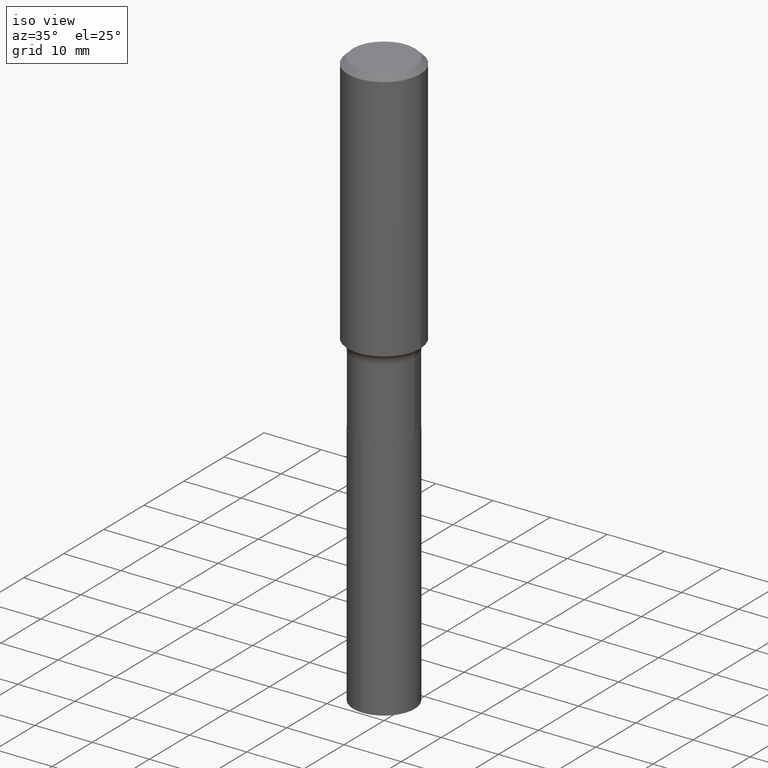
[diagram: clean part render]
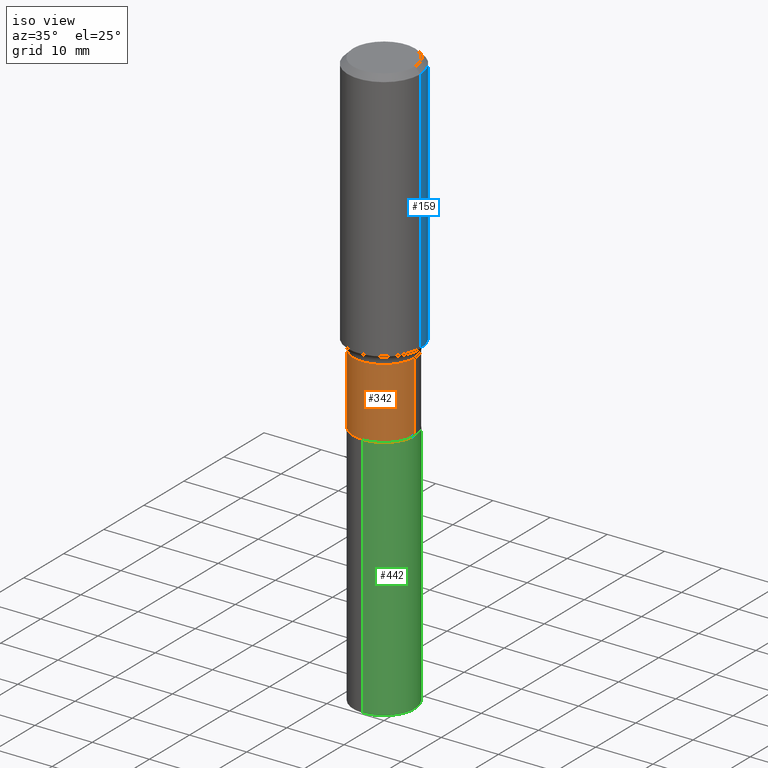
[diagram: same view with three faces highlighted in distinct colors, each labeled with its STEP entity id]
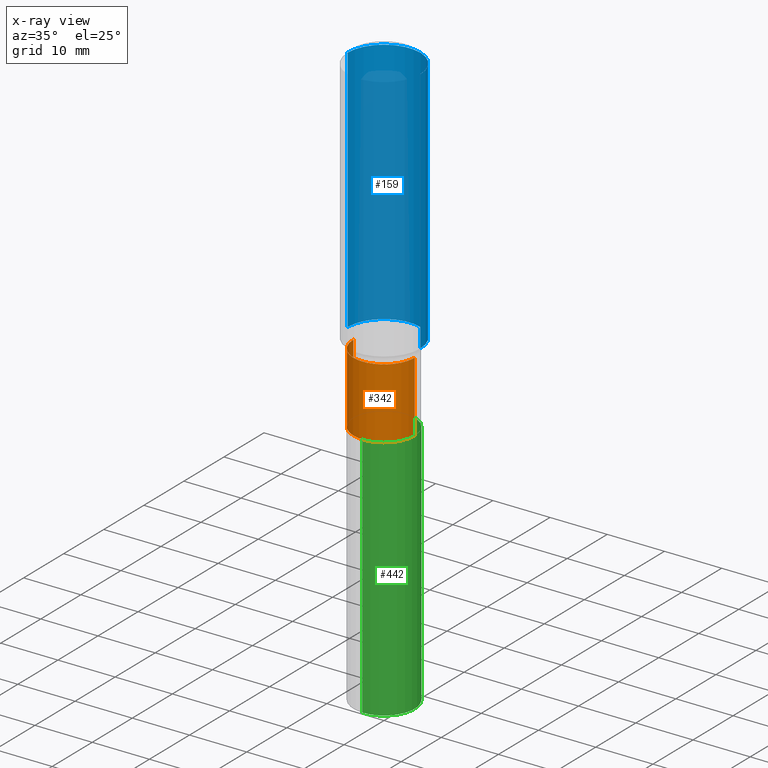
[diagram: x-ray of the same camera — body ghosted, the three highlighted faces saturated]
A machine part, iso view with three faces highlighted in distinct colors.
The next image is the same camera in x-ray (body ghosted, the three faces saturated) — at least one of them is partly hidden behind the body in this view.
Their STEP definitions:

[orange] entity #342 — the highlighted cylindrical surface (partial cylindrical patch) has radius 5.3581 mm, axis along (-0, 0, 1).
#13 = CARTESIAN_POINT ( 'NONE',  ( -0.2109499999999999431, -5.672787342964832849E-15, -1.811700000000000310 ) ) ;
#31 = CIRCLE ( 'NONE', #299, 0.2109499999999999431 ) ;
#49 = CARTESIAN_POINT ( 'NONE',  ( 4.430455836165612608E-29, -6.325516741582127678E-15, -1.811700000000000310 ) ) ;
#52 = AXIS2_PLACEMENT_3D ( 'NONE', #486, #210, #142 ) ;
#64 = DIRECTION ( 'NONE',  ( 1.000000000000000000, -6.982962677686266711E-15, 0.000000000000000000 ) ) ;
#66 = CARTESIAN_POINT ( 'NONE',  ( 0.2109499999999999431, -7.798572718440045243E-15, -1.811700000000000310 ) ) ;
#76 = VERTEX_POINT ( 'NONE', #13 ) ;
#77 = VERTEX_POINT ( 'NONE', #163 ) ;
#99 = CARTESIAN_POINT ( 'NONE',  ( 5.615774566523547796E-29, -8.017837746519400290E-15, -2.296400000000000219 ) ) ;
#107 = ORIENTED_EDGE ( 'NONE', *, *, #126, .F. ) ;
#126 = EDGE_CURVE ( 'NONE', #77, #76, #267, .T. ) ;
#131 = AXIS2_PLACEMENT_3D ( 'NONE', #99, #395, #64 ) ;
#142 = DIRECTION ( 'NONE',  ( 1.000000000000000000, -6.982962677686266711E-15, 4.876176775795935793E-29 ) ) ;
#152 = ORIENTED_EDGE ( 'NONE', *, *, #421, .T. ) ;
#163 = CARTESIAN_POINT ( 'NONE',  ( -0.2109499999999999986, -5.672787342964832060E-15, -2.296400000000000219 ) ) ;
#181 = DIRECTION ( 'NONE',  ( -2.445468806185136877E-29, 3.491481338843145188E-15, 1.000000000000000000 ) ) ;
#201 = DIRECTION ( 'NONE',  ( -2.445468806185136877E-29, 3.491481338843145188E-15, 1.000000000000000000 ) ) ;
#210 = DIRECTION ( 'NONE',  ( -2.445468806185136597E-29, 3.491481338843145583E-15, 1.000000000000000000 ) ) ;
#217 = CYLINDRICAL_SURFACE ( 'NONE', #52, 0.2109499999999999709 ) ;
#226 = EDGE_CURVE ( 'NONE', #76, #446, #31, .T. ) ;
#244 = VECTOR ( 'NONE', #201, 39.37007874015748143 ) ;
#259 = VERTEX_POINT ( 'NONE', #284 ) ;
#267 = LINE ( 'NONE', #346, #244 ) ;
#273 = DIRECTION ( 'NONE',  ( 1.000000000000000000, -6.982962677686268288E-15, 0.000000000000000000 ) ) ;
#278 = CIRCLE ( 'NONE', #131, 0.2109499999999999986 ) ;
#284 = CARTESIAN_POINT ( 'NONE',  ( 0.2109499999999999986, -9.490893723377317855E-15, -2.296400000000000219 ) ) ;
#291 = LINE ( 'NONE', #479, #322 ) ;
#299 = AXIS2_PLACEMENT_3D ( 'NONE', #49, #426, #273 ) ;
#306 = EDGE_LOOP ( 'NONE', ( #107, #152, #321, #335 ) ) ;
#321 = ORIENTED_EDGE ( 'NONE', *, *, #403, .T. ) ;
#322 = VECTOR ( 'NONE', #181, 39.37007874015748143 ) ;
#335 = ORIENTED_EDGE ( 'NONE', *, *, #226, .F. ) ;
#342 = ADVANCED_FACE ( 'NONE', ( #483 ), #217, .T. ) ;
#346 = CARTESIAN_POINT ( 'NONE',  ( -0.2109499999999999709, 1.498889901085931135E-15, -1.037649357289272242E-29 ) ) ;
#395 = DIRECTION ( 'NONE',  ( -2.445468806185136597E-29, 3.491481338843145583E-15, 1.000000000000000000 ) ) ;
#403 = EDGE_CURVE ( 'NONE', #259, #446, #291, .T. ) ;
#421 = EDGE_CURVE ( 'NONE', #77, #259, #278, .T. ) ;
#426 = DIRECTION ( 'NONE',  ( -2.445468806185136597E-29, 3.491481338843145583E-15, 1.000000000000000000 ) ) ;
#446 = VERTEX_POINT ( 'NONE', #66 ) ;
#479 = CARTESIAN_POINT ( 'NONE',  ( 0.2109499999999999709, -1.473055976857917762E-15, 1.028629490854152488E-29 ) ) ;
#483 = FACE_OUTER_BOUND ( 'NONE', #306, .T. ) ;
#486 = CARTESIAN_POINT ( 'NONE',  ( 0.000000000000000000, 0.000000000000000000, 0.000000000000000000 ) ) ;

[blue] entity #159 — the highlighted cylindrical surface (partial cylindrical patch) has radius 6.35 mm, axis along (-0, 0, 1).
#2 = EDGE_CURVE ( 'NONE', #189, #69, #329, .T. ) ;
#32 = CIRCLE ( 'NONE', #381, 0.2500000000000002220 ) ;
#46 = CYLINDRICAL_SURFACE ( 'NONE', #177, 0.2500000000000001110 ) ;
#55 = CARTESIAN_POINT ( 'NONE',  ( 0.2500000000000002776, -7.835307206898355529E-15, -1.744121175653907674 ) ) ;
#69 = VERTEX_POINT ( 'NONE', #471 ) ;
#72 = ORIENTED_EDGE ( 'NONE', *, *, #112, .T. ) ;
#95 = DIRECTION ( 'NONE',  ( -2.445468806185136597E-29, 3.491481338843145583E-15, 1.000000000000000000 ) ) ;
#112 = EDGE_CURVE ( 'NONE', #265, #219, #166, .T. ) ;
#156 = CARTESIAN_POINT ( 'NONE',  ( -0.2500000000000000000, -1.333891704441451331E-15, -0.03750000000000025535 ) ) ;
#157 = ORIENTED_EDGE ( 'NONE', *, *, #447, .T. ) ;
#159 = ADVANCED_FACE ( 'NONE', ( #423 ), #46, .T. ) ;
#166 = LINE ( 'NONE', #338, #465 ) ;
#177 = AXIS2_PLACEMENT_3D ( 'NONE', #385, #312, #281 ) ;
#185 = VECTOR ( 'NONE', #190, 39.37007874015748143 ) ;
#189 = VERTEX_POINT ( 'NONE', #55 ) ;
#190 = DIRECTION ( 'NONE',  ( -2.445468806185136877E-29, 3.491481338843145188E-15, 1.000000000000000000 ) ) ;
#193 = AXIS2_PLACEMENT_3D ( 'NONE', #242, #95, #394 ) ;
#209 = CARTESIAN_POINT ( 'NONE',  ( -0.2500000000000002776, -4.313209698076534443E-15, -1.744121175653907674 ) ) ;
#219 = VERTEX_POINT ( 'NONE', #156 ) ;
#242 = CARTESIAN_POINT ( 'NONE',  ( 9.170508023194324245E-31, -1.309305502066188567E-16, -0.03750000000000025535 ) ) ;
#251 = EDGE_LOOP ( 'NONE', ( #157, #72, #262, #382 ) ) ;
#262 = ORIENTED_EDGE ( 'NONE', *, *, #311, .F. ) ;
#265 = VERTEX_POINT ( 'NONE', #209 ) ;
#281 = DIRECTION ( 'NONE',  ( 1.000000000000000000, -6.982962677686266711E-15, 4.876176775795935793E-29 ) ) ;
#311 = EDGE_CURVE ( 'NONE', #69, #219, #313, .T. ) ;
#312 = DIRECTION ( 'NONE',  ( -2.445468806185136597E-29, 3.491481338843145583E-15, 1.000000000000000000 ) ) ;
#313 = CIRCLE ( 'NONE', #193, 0.2500000000000000000 ) ;
#329 = LINE ( 'NONE', #491, #185 ) ;
#338 = CARTESIAN_POINT ( 'NONE',  ( -0.2500000000000001110, 1.776356839400251254E-15, -1.229733772563727006E-29 ) ) ;
#356 = DIRECTION ( 'NONE',  ( 1.000000000000000000, -6.982962677686268288E-15, 0.000000000000000000 ) ) ;
#381 = AXIS2_PLACEMENT_3D ( 'NONE', #444, #439, #356 ) ;
#382 = ORIENTED_EDGE ( 'NONE', *, *, #2, .F. ) ;
#383 = DIRECTION ( 'NONE',  ( -2.445468806185136877E-29, 3.491481338843145188E-15, 1.000000000000000000 ) ) ;
#385 = CARTESIAN_POINT ( 'NONE',  ( 0.000000000000000000, 0.000000000000000000, 0.000000000000000000 ) ) ;
#394 = DIRECTION ( 'NONE',  ( 1.000000000000000000, -6.982962677686266711E-15, 0.000000000000000000 ) ) ;
#423 = FACE_OUTER_BOUND ( 'NONE', #251, .T. ) ;
#439 = DIRECTION ( 'NONE',  ( -2.445468806185136597E-29, 3.491481338843145583E-15, 1.000000000000000000 ) ) ;
#444 = CARTESIAN_POINT ( 'NONE',  ( 4.265193929268578422E-29, -6.089566537476786485E-15, -1.744121175653907674 ) ) ;
#447 = EDGE_CURVE ( 'NONE', #189, #265, #32, .T. ) ;
#465 = VECTOR ( 'NONE', #383, 39.37007874015748143 ) ;
#471 = CARTESIAN_POINT ( 'NONE',  ( 0.2500000000000000000, -1.876671219628185362E-15, -0.03750000000000025535 ) ) ;
#491 = CARTESIAN_POINT ( 'NONE',  ( 0.2500000000000001110, -1.745740669421567467E-15, 1.219044193948984509E-29 ) ) ;

[green] entity #442 — the highlighted cylindrical surface (partial cylindrical patch) has radius 5.3581 mm, axis along (-0, 0, 1).
#3 = CIRCLE ( 'NONE', #458, 0.2109499999999999986 ) ;
#14 = EDGE_CURVE ( 'NONE', #29, #36, #197, .T. ) ;
#17 = CARTESIAN_POINT ( 'NONE',  ( 1.498889901086028954E-15, 0.2109499999999919495, -2.296900000000000830 ) ) ;
#29 = VERTEX_POINT ( 'NONE', #459 ) ;
#34 = ORIENTED_EDGE ( 'NONE', *, *, #295, .T. ) ;
#36 = VERTEX_POINT ( 'NONE', #116 ) ;
#75 = CIRCLE ( 'NONE', #457, 0.2109499999999999986 ) ;
#91 = CARTESIAN_POINT ( 'NONE',  ( 1.498889901086028757E-15, 0.2109499999999859821, -3.995987720485979278 ) ) ;
#93 = DIRECTION ( 'NONE',  ( -2.445665733162278682E-29, 3.491199328203490904E-15, 1.000000000000000000 ) ) ;
#115 = ORIENTED_EDGE ( 'NONE', *, *, #14, .F. ) ;
#116 = CARTESIAN_POINT ( 'NONE',  ( -1.473055976857861753E-15, -0.2109500000000080200, -2.296899999999999054 ) ) ;
#167 = CARTESIAN_POINT ( 'NONE',  ( 1.498889901085987144E-15, 0.2109499999999919773, -2.296900000000000830 ) ) ;
#172 = VERTEX_POINT ( 'NONE', #91 ) ;
#197 = LINE ( 'NONE', #339, #380 ) ;
#202 = DIRECTION ( 'NONE',  ( -2.445665733162278401E-29, 3.491199328203490904E-15, 1.000000000000000000 ) ) ;
#208 = FACE_OUTER_BOUND ( 'NONE', #330, .T. ) ;
#215 = EDGE_CURVE ( 'NONE', #36, #223, #75, .T. ) ;
#223 = VERTEX_POINT ( 'NONE', #17 ) ;
#245 = AXIS2_PLACEMENT_3D ( 'NONE', #285, #401, #289 ) ;
#285 = CARTESIAN_POINT ( 'NONE',  ( 5.616997300926640597E-29, -8.019583487188821005E-15, -2.296899999999999942 ) ) ;
#289 = DIRECTION ( 'NONE',  ( -6.982962677686265922E-15, -1.000000000000000000, 3.885064698266314085E-15 ) ) ;
#295 = EDGE_CURVE ( 'NONE', #29, #172, #3, .T. ) ;
#301 = EDGE_CURVE ( 'NONE', #172, #223, #438, .T. ) ;
#307 = DIRECTION ( 'NONE',  ( -6.982962677686265922E-15, -1.000000000000000000, 3.885064698266314085E-15 ) ) ;
#330 = EDGE_LOOP ( 'NONE', ( #34, #443, #464, #115 ) ) ;
#336 = CARTESIAN_POINT ( 'NONE',  ( 5.616997300926640597E-29, -8.019583487188821005E-15, -2.296899999999999942 ) ) ;
#339 = CARTESIAN_POINT ( 'NONE',  ( -1.473055976857861753E-15, -0.2109500000000080200, -2.296899999999999054 ) ) ;
#347 = DIRECTION ( 'NONE',  ( -2.445665733162278682E-29, 3.491199328203490904E-15, 1.000000000000000000 ) ) ;
#354 = DIRECTION ( 'NONE',  ( -6.982962677686265922E-15, -1.000000000000000000, 2.590043132177542855E-15 ) ) ;
#380 = VECTOR ( 'NONE', #347, 39.37007874015748143 ) ;
#401 = DIRECTION ( 'NONE',  ( -2.445665733162278401E-29, 3.491199328203490904E-15, 1.000000000000000000 ) ) ;
#434 = DIRECTION ( 'NONE',  ( -2.445665733162278401E-29, 3.491199328203490904E-15, 1.000000000000000000 ) ) ;
#438 = LINE ( 'NONE', #167, #473 ) ;
#442 = ADVANCED_FACE ( 'NONE', ( #208 ), #448, .T. ) ;
#443 = ORIENTED_EDGE ( 'NONE', *, *, #301, .T. ) ;
#448 = CYLINDRICAL_SURFACE ( 'NONE', #245, 0.2109499999999999986 ) ;
#457 = AXIS2_PLACEMENT_3D ( 'NONE', #336, #202, #307 ) ;
#458 = AXIS2_PLACEMENT_3D ( 'NONE', #475, #434, #354 ) ;
#459 = CARTESIAN_POINT ( 'NONE',  ( -1.473055976857819549E-15, -0.2109500000000139319, -3.995987720485978389 ) ) ;
#464 = ORIENTED_EDGE ( 'NONE', *, *, #215, .F. ) ;
#473 = VECTOR ( 'NONE', #93, 39.37007874015748143 ) ;
#475 = CARTESIAN_POINT ( 'NONE',  ( 9.772397916556006404E-29, -1.395143739550827002E-14, -3.995987720485978834 ) ) ;